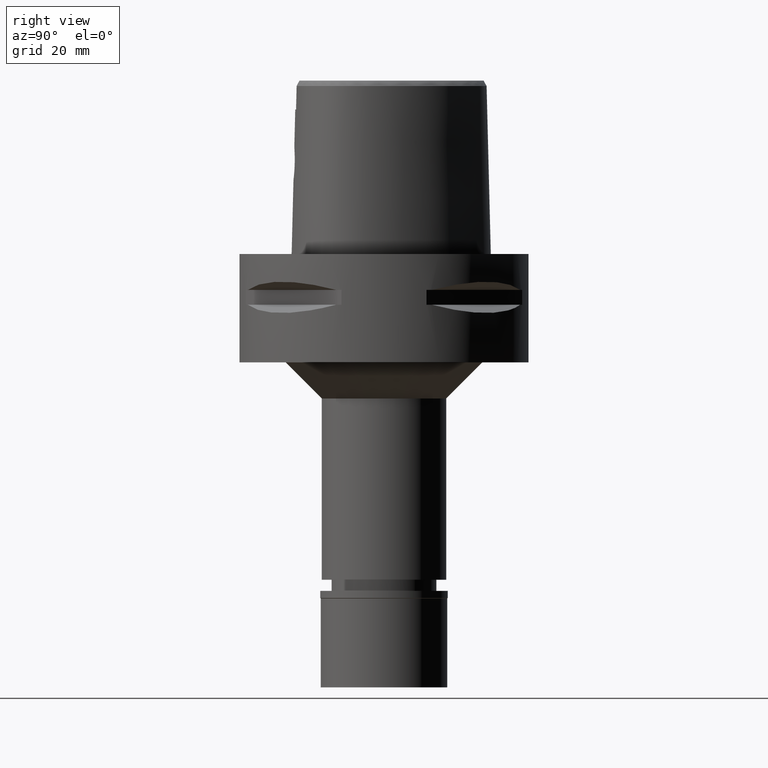
[diagram: clean part render]
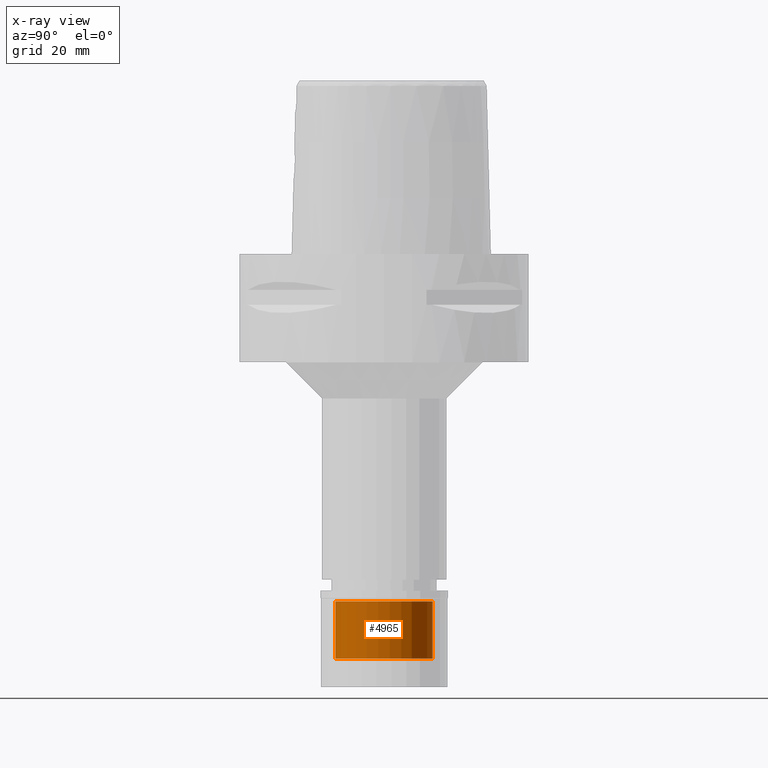
[diagram: x-ray — body ghosted, one internal face saturated and labeled with its STEP entity id]
A machine part, right view, then the same camera in x-ray: the body is ghosted and one INTERNAL B-rep face — a face not visible from any outside direction — is saturated and labeled: STEP entity #4965.
In plain terms, the highlighted cylindrical surface (partial cylindrical patch) has radius 13.5 mm, axis along (0, 0, -1).
Its self-contained STEP definition (entity closure, byte-faithful):
#91 = VERTEX_POINT ( 'NONE', #2233 ) ;
#114 = VERTEX_POINT ( 'NONE', #5086 ) ;
#258 = DIRECTION ( 'NONE',  ( 0.0000000000000000000, -1.000000000000000000, 0.0000000000000000000 ) ) ;
#568 = LINE ( 'NONE', #3019, #4180 ) ;
#804 = FACE_OUTER_BOUND ( 'NONE', #809, .T. ) ;
#809 = EDGE_LOOP ( 'NONE', ( #4550, #2227, #4580, #1347 ) ) ;
#878 = EDGE_CURVE ( 'NONE', #114, #1687, #2273, .T. ) ;
#1001 = DIRECTION ( 'NONE',  ( 0.0000000000000000000, 0.0000000000000000000, 1.000000000000000000 ) ) ;
#1008 = CARTESIAN_POINT ( 'NONE',  ( 0.0000000000000000000, -13.50000000000000000, -18.70000000000000284 ) ) ;
#1189 = CYLINDRICAL_SURFACE ( 'NONE', #2197, 13.50000000000000000 ) ;
#1347 = ORIENTED_EDGE ( 'NONE', *, *, #3463, .F. ) ;
#1398 = DIRECTION ( 'NONE',  ( 0.0000000000000000000, 0.0000000000000000000, -1.000000000000000000 ) ) ;
#1687 = VERTEX_POINT ( 'NONE', #3371 ) ;
#2156 = CARTESIAN_POINT ( 'NONE',  ( 0.0000000000000000000, 0.0000000000000000000, -18.70000000000000284 ) ) ;
#2197 = AXIS2_PLACEMENT_3D ( 'NONE', #3188, #4387, #2409 ) ;
#2227 = ORIENTED_EDGE ( 'NONE', *, *, #3162, .T. ) ;
#2233 = CARTESIAN_POINT ( 'NONE',  ( 0.0000000000000000000, 13.50000000000000000, -18.70000000000000284 ) ) ;
#2273 = CIRCLE ( 'NONE', #4669, 13.50000000000000000 ) ;
#2409 = DIRECTION ( 'NONE',  ( 0.0000000000000000000, -1.000000000000000000, 0.0000000000000000000 ) ) ;
#2546 = DIRECTION ( 'NONE',  ( 0.0000000000000000000, 1.000000000000000000, 0.0000000000000000000 ) ) ;
#2819 = CARTESIAN_POINT ( 'NONE',  ( 0.0000000000000000000, -13.50000000000000000, -18.70000000000000284 ) ) ;
#2890 = EDGE_CURVE ( 'NONE', #91, #4853, #4362, .T. ) ;
#3019 = CARTESIAN_POINT ( 'NONE',  ( 0.0000000000000000000, 13.50000000000000000, -18.70000000000000284 ) ) ;
#3162 = EDGE_CURVE ( 'NONE', #4853, #114, #4500, .T. ) ;
#3188 = CARTESIAN_POINT ( 'NONE',  ( 0.0000000000000000000, 0.0000000000000000000, 0.0000000000000000000 ) ) ;
#3344 = VECTOR ( 'NONE', #4888, 1000.000000000000000 ) ;
#3371 = CARTESIAN_POINT ( 'NONE',  ( 0.0000000000000000000, 13.50000000000000000, -2.899999999999999911 ) ) ;
#3463 = EDGE_CURVE ( 'NONE', #91, #1687, #568, .T. ) ;
#3800 = DIRECTION ( 'NONE',  ( 0.0000000000000000000, 0.0000000000000000000, 1.000000000000000000 ) ) ;
#4180 = VECTOR ( 'NONE', #1001, 1000.000000000000000 ) ;
#4362 = CIRCLE ( 'NONE', #4586, 13.50000000000000000 ) ;
#4387 = DIRECTION ( 'NONE',  ( 0.0000000000000000000, 0.0000000000000000000, -1.000000000000000000 ) ) ;
#4500 = LINE ( 'NONE', #2819, #3344 ) ;
#4550 = ORIENTED_EDGE ( 'NONE', *, *, #2890, .T. ) ;
#4580 = ORIENTED_EDGE ( 'NONE', *, *, #878, .T. ) ;
#4586 = AXIS2_PLACEMENT_3D ( 'NONE', #2156, #1398, #2546 ) ;
#4606 = CARTESIAN_POINT ( 'NONE',  ( 0.0000000000000000000, 0.0000000000000000000, -2.899999999999999911 ) ) ;
#4669 = AXIS2_PLACEMENT_3D ( 'NONE', #4606, #3800, #258 ) ;
#4853 = VERTEX_POINT ( 'NONE', #1008 ) ;
#4888 = DIRECTION ( 'NONE',  ( 0.0000000000000000000, 0.0000000000000000000, 1.000000000000000000 ) ) ;
#4965 = ADVANCED_FACE ( 'NONE', ( #804 ), #1189, .F. ) ;
#5086 = CARTESIAN_POINT ( 'NONE',  ( 0.0000000000000000000, -13.50000000000000000, -2.899999999999999911 ) ) ;